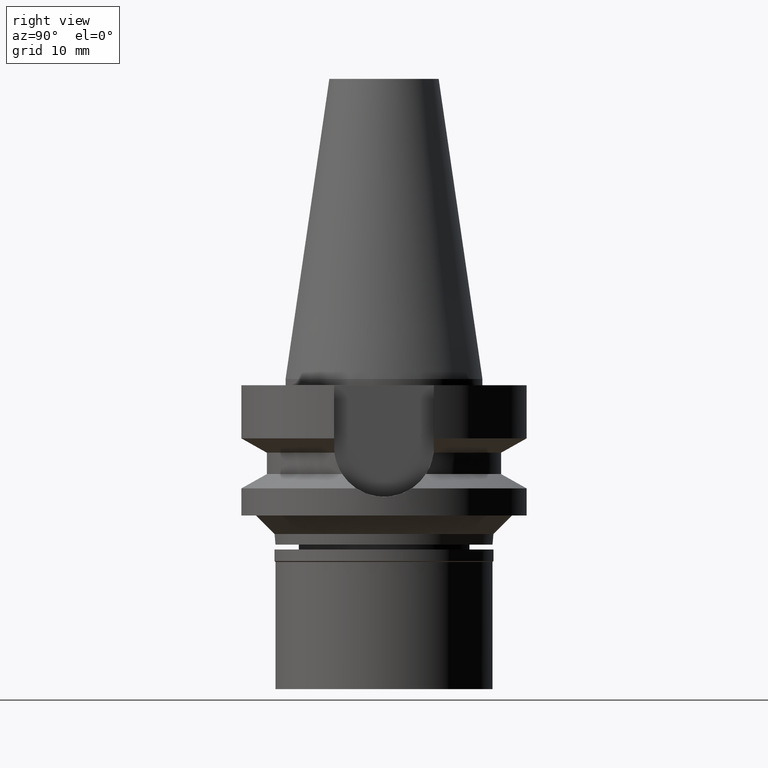
[diagram: clean part render]
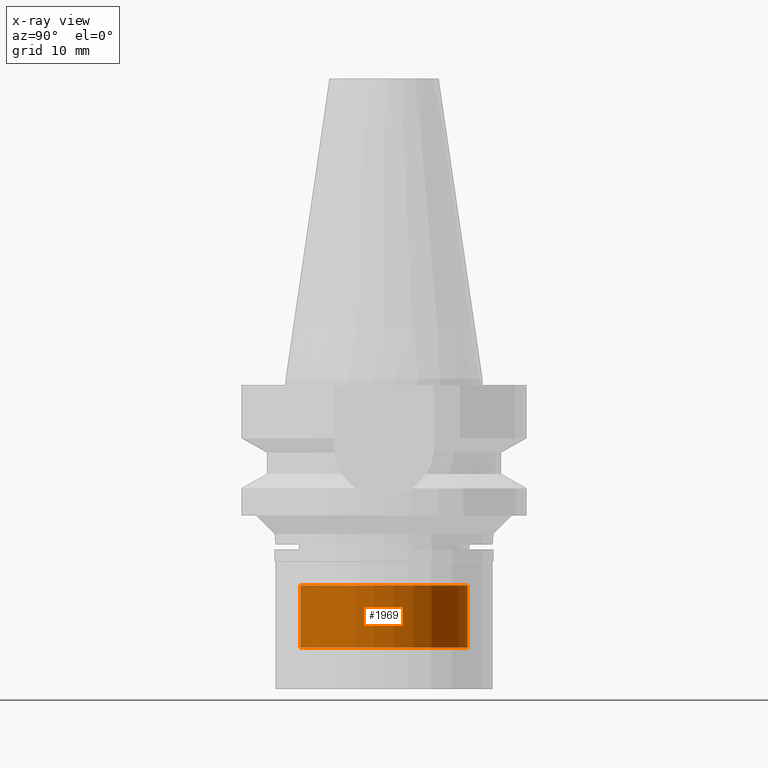
[diagram: x-ray — body ghosted, one internal face saturated and labeled with its STEP entity id]
A machine part, right view, then the same camera in x-ray: the body is ghosted and one INTERNAL B-rep face — a face not visible from any outside direction — is saturated and labeled: STEP entity #1969.
In plain terms, the highlighted cylindrical surface (partial cylindrical patch) has radius 13.5 mm, axis along (0, 0, -1).
Its self-contained STEP definition (entity closure, byte-faithful):
#118 = DIRECTION ( 'NONE',  ( 0.0000000000000000000, 1.000000000000000000, 0.0000000000000000000 ) ) ;
#336 = EDGE_CURVE ( 'NONE', #1951, #1655, #1515, .T. ) ;
#350 = ORIENTED_EDGE ( 'NONE', *, *, #1316, .F. ) ;
#360 = CIRCLE ( 'NONE', #2482, 13.50000000000000000 ) ;
#385 = EDGE_CURVE ( 'NONE', #1655, #1124, #2527, .T. ) ;
#391 = CARTESIAN_POINT ( 'NONE',  ( 0.0000000000000000000, -13.50000000000000000, -33.30000000000000426 ) ) ;
#538 = CYLINDRICAL_SURFACE ( 'NONE', #1636, 13.50000000000000000 ) ;
#752 = DIRECTION ( 'NONE',  ( 0.0000000000000000000, -1.000000000000000000, 0.0000000000000000000 ) ) ;
#763 = FACE_OUTER_BOUND ( 'NONE', #2249, .T. ) ;
#815 = ORIENTED_EDGE ( 'NONE', *, *, #336, .T. ) ;
#866 = DIRECTION ( 'NONE',  ( 0.0000000000000000000, 0.0000000000000000000, -1.000000000000000000 ) ) ;
#897 = LINE ( 'NONE', #1586, #2817 ) ;
#901 = DIRECTION ( 'NONE',  ( 0.0000000000000000000, 0.0000000000000000000, -1.000000000000000000 ) ) ;
#1064 = DIRECTION ( 'NONE',  ( 0.0000000000000000000, -1.000000000000000000, 0.0000000000000000000 ) ) ;
#1124 = VERTEX_POINT ( 'NONE', #1612 ) ;
#1128 = ORIENTED_EDGE ( 'NONE', *, *, #2135, .T. ) ;
#1316 = EDGE_CURVE ( 'NONE', #2735, #1124, #897, .T. ) ;
#1395 = DIRECTION ( 'NONE',  ( 0.0000000000000000000, 0.0000000000000000000, -1.000000000000000000 ) ) ;
#1470 = CARTESIAN_POINT ( 'NONE',  ( 0.0000000000000000000, 0.0000000000000000000, 0.0000000000000000000 ) ) ;
#1515 = LINE ( 'NONE', #391, #1921 ) ;
#1586 = CARTESIAN_POINT ( 'NONE',  ( 0.0000000000000000000, 13.50000000000000000, -33.30000000000000426 ) ) ;
#1612 = CARTESIAN_POINT ( 'NONE',  ( 0.0000000000000000000, 13.50000000000000000, -43.29999999999999716 ) ) ;
#1636 = AXIS2_PLACEMENT_3D ( 'NONE', #1470, #2922, #752 ) ;
#1655 = VERTEX_POINT ( 'NONE', #2652 ) ;
#1726 = DIRECTION ( 'NONE',  ( 0.0000000000000000000, 0.0000000000000000000, 1.000000000000000000 ) ) ;
#1921 = VECTOR ( 'NONE', #901, 1000.000000000000000 ) ;
#1951 = VERTEX_POINT ( 'NONE', #2111 ) ;
#1969 = ADVANCED_FACE ( 'NONE', ( #763 ), #538, .T. ) ;
#2005 = CARTESIAN_POINT ( 'NONE',  ( 0.0000000000000000000, 0.0000000000000000000, -33.30000000000000426 ) ) ;
#2111 = CARTESIAN_POINT ( 'NONE',  ( 0.0000000000000000000, -13.50000000000000000, -33.30000000000000426 ) ) ;
#2135 = EDGE_CURVE ( 'NONE', #2735, #1951, #360, .T. ) ;
#2138 = AXIS2_PLACEMENT_3D ( 'NONE', #2210, #1726, #1064 ) ;
#2210 = CARTESIAN_POINT ( 'NONE',  ( 0.0000000000000000000, 0.0000000000000000000, -43.29999999999999716 ) ) ;
#2249 = EDGE_LOOP ( 'NONE', ( #1128, #815, #3000, #350 ) ) ;
#2482 = AXIS2_PLACEMENT_3D ( 'NONE', #2005, #866, #118 ) ;
#2527 = CIRCLE ( 'NONE', #2138, 13.50000000000000000 ) ;
#2652 = CARTESIAN_POINT ( 'NONE',  ( 0.0000000000000000000, -13.50000000000000000, -43.29999999999999716 ) ) ;
#2691 = CARTESIAN_POINT ( 'NONE',  ( 0.0000000000000000000, 13.50000000000000000, -33.30000000000000426 ) ) ;
#2735 = VERTEX_POINT ( 'NONE', #2691 ) ;
#2817 = VECTOR ( 'NONE', #1395, 1000.000000000000000 ) ;
#2922 = DIRECTION ( 'NONE',  ( 0.0000000000000000000, 0.0000000000000000000, -1.000000000000000000 ) ) ;
#3000 = ORIENTED_EDGE ( 'NONE', *, *, #385, .T. ) ;